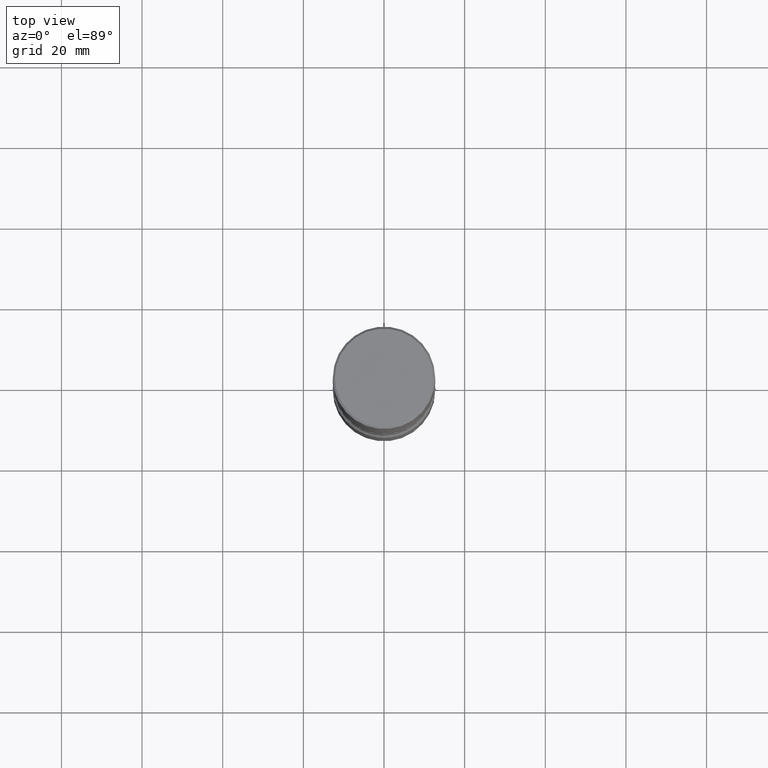
[diagram: clean part render]
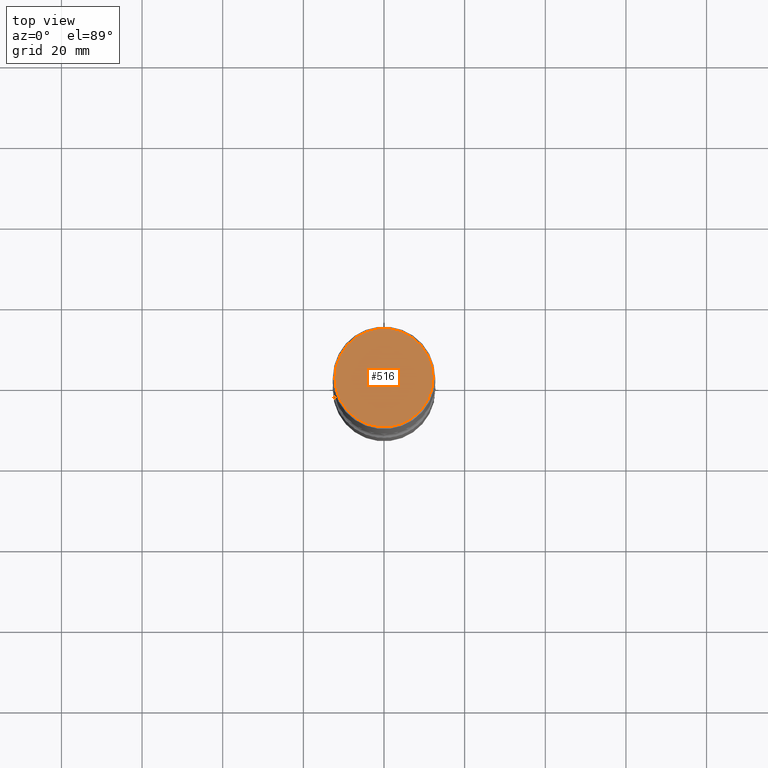
[diagram: same view with one face highlighted and labeled with its STEP entity id]
A machine part, top view. The second image highlights one B-rep face of the part: STEP entity #516.
In plain terms, the highlighted planar face has unit normal (0, -0, -1).
Its self-contained STEP definition (entity closure, byte-faithful):
#27 = VERTEX_POINT ( 'NONE', #263 ) ;
#47 = CIRCLE ( 'NONE', #60, 0.4799999999999998157 ) ;
#60 = AXIS2_PLACEMENT_3D ( 'NONE', #388, #118, #520 ) ;
#70 = DIRECTION ( 'NONE',  ( -1.000000000000000000, 6.982962677686265922E-15, -4.876176775795935793E-29 ) ) ;
#90 = ORIENTED_EDGE ( 'NONE', *, *, #432, .T. ) ;
#103 = ORIENTED_EDGE ( 'NONE', *, *, #383, .T. ) ;
#110 = DIRECTION ( 'NONE',  ( 1.000000000000000000, -6.982962677686266711E-15, 4.876431871984415397E-29 ) ) ;
#118 = DIRECTION ( 'NONE',  ( -2.445468806185136597E-29, 3.491481338843145583E-15, 1.000000000000000000 ) ) ;
#159 = CARTESIAN_POINT ( 'NONE',  ( -4.175405657340879278E-46, 5.961372681521788801E-32, 1.707404996040164512E-17 ) ) ;
#169 = CIRCLE ( 'NONE', #485, 0.4799999999999998157 ) ;
#199 = VERTEX_POINT ( 'NONE', #257 ) ;
#212 = PLANE ( 'NONE',  #399 ) ;
#257 = CARTESIAN_POINT ( 'NONE',  ( -0.4799999999999998157, 3.386736898677838408E-15, 1.707404996037808406E-17 ) ) ;
#263 = CARTESIAN_POINT ( 'NONE',  ( 0.4799999999999998157, -3.396558832296481310E-15, 1.707404996042524007E-17 ) ) ;
#283 = EDGE_LOOP ( 'NONE', ( #90, #103 ) ) ;
#383 = EDGE_CURVE ( 'NONE', #27, #199, #169, .T. ) ;
#388 = CARTESIAN_POINT ( 'NONE',  ( -4.175405657340879278E-46, 5.961372681521788801E-32, 1.707404996040164512E-17 ) ) ;
#399 = AXIS2_PLACEMENT_3D ( 'NONE', #507, #463, #70 ) ;
#432 = EDGE_CURVE ( 'NONE', #199, #27, #47, .T. ) ;
#463 = DIRECTION ( 'NONE',  ( 2.438088387897960049E-29, -3.491481338843145188E-15, -1.000000000000000000 ) ) ;
#485 = AXIS2_PLACEMENT_3D ( 'NONE', #159, #506, #110 ) ;
#506 = DIRECTION ( 'NONE',  ( -2.445468806185136597E-29, 3.491481338843145583E-15, 1.000000000000000000 ) ) ;
#507 = CARTESIAN_POINT ( 'NONE',  ( 3.351822085289406364E-15, 0.4799999999999998157, -1.667374017664508443E-15 ) ) ;
#516 = ADVANCED_FACE ( 'NONE', ( #560 ), #212, .F. ) ;
#520 = DIRECTION ( 'NONE',  ( 1.000000000000000000, -6.982962677686266711E-15, 4.876431871984415397E-29 ) ) ;
#560 = FACE_OUTER_BOUND ( 'NONE', #283, .T. ) ;